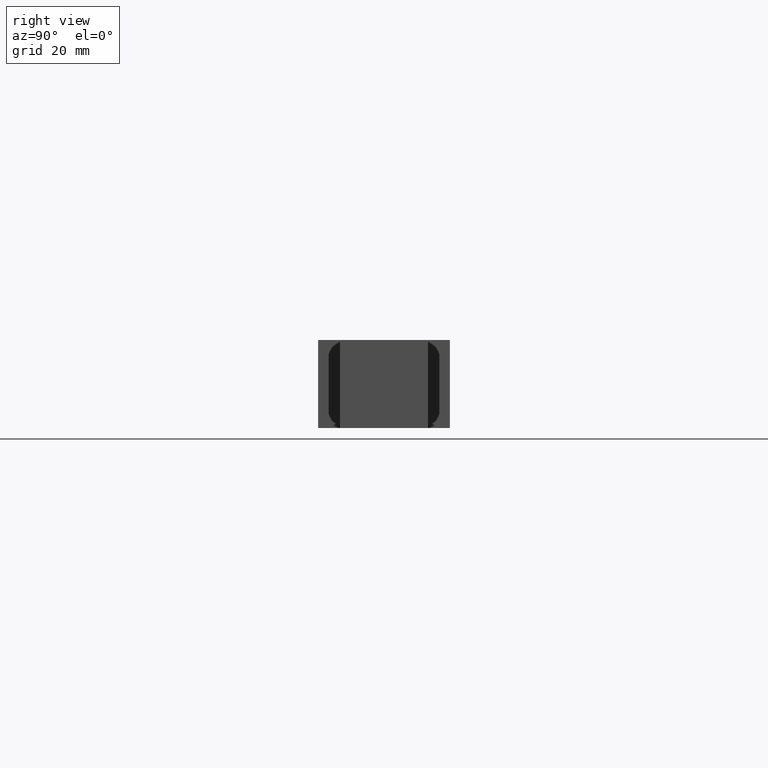
[diagram: clean part render]
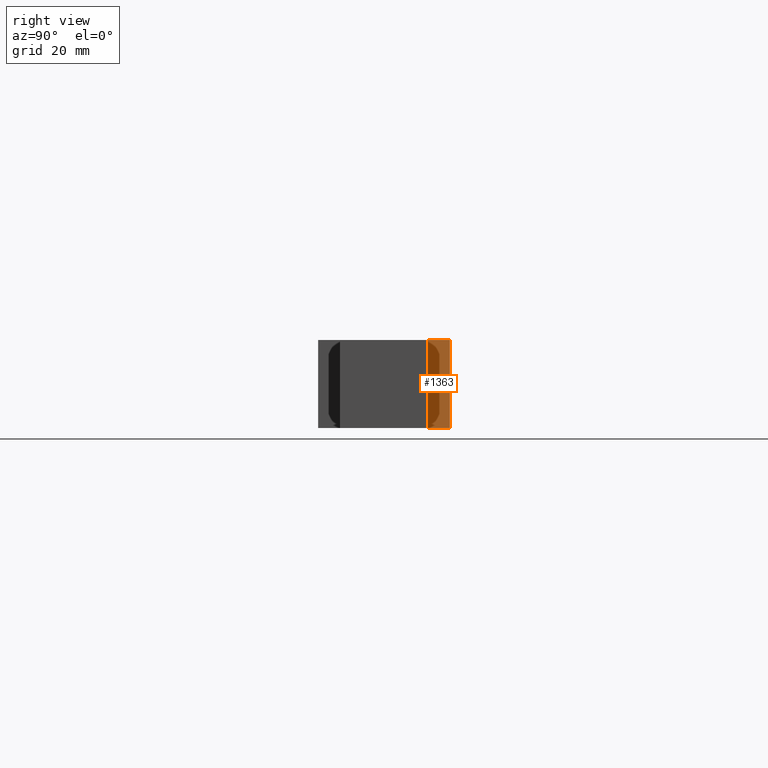
[diagram: same view with one face highlighted and labeled with its STEP entity id]
A machine part, right view. The second image highlights one B-rep face of the part: STEP entity #1363.
In plain terms, the highlighted planar face has unit normal (1, 0, -0).
Its self-contained STEP definition (entity closure, byte-faithful):
#19 = VERTEX_POINT ( 'NONE', #1342 ) ;
#131 = PLANE ( 'NONE',  #314 ) ;
#175 = EDGE_CURVE ( 'NONE', #2112, #465, #2324, .T. ) ;
#199 = ORIENTED_EDGE ( 'NONE', *, *, #967, .T. ) ;
#314 = AXIS2_PLACEMENT_3D ( 'NONE', #975, #2566, #2290 ) ;
#332 = DIRECTION ( 'NONE',  ( 0.0000000000000000000, 0.0000000000000000000, 1.000000000000000000 ) ) ;
#465 = VERTEX_POINT ( 'NONE', #1018 ) ;
#499 = LINE ( 'NONE', #2470, #1137 ) ;
#590 = VECTOR ( 'NONE', #819, 1000.000000000000000 ) ;
#745 = EDGE_CURVE ( 'NONE', #1110, #465, #2423, .T. ) ;
#819 = DIRECTION ( 'NONE',  ( -0.0000000000000000000, 1.000000000000000000, -0.0000000000000000000 ) ) ;
#967 = EDGE_CURVE ( 'NONE', #19, #2112, #1889, .T. ) ;
#975 = CARTESIAN_POINT ( 'NONE',  ( -110.0000000000000000, 11.99999999999998800, -16.00000000000000000 ) ) ;
#1018 = CARTESIAN_POINT ( 'NONE',  ( -110.0000000000000000, 11.99999999999998800, 0.0000000000000000000 ) ) ;
#1034 = DIRECTION ( 'NONE',  ( -0.0000000000000000000, 1.000000000000000000, -0.0000000000000000000 ) ) ;
#1110 = VERTEX_POINT ( 'NONE', #2296 ) ;
#1137 = VECTOR ( 'NONE', #332, 1000.000000000000000 ) ;
#1342 = CARTESIAN_POINT ( 'NONE',  ( -110.0000000000000000, 7.999999999999989300, -16.00000000000000000 ) ) ;
#1363 = ADVANCED_FACE ( 'NONE', ( #1574 ), #131, .T. ) ;
#1405 = VECTOR ( 'NONE', #1034, 1000.000000000000000 ) ;
#1546 = CARTESIAN_POINT ( 'NONE',  ( -110.0000000000000000, 11.99999999999998800, 0.0000000000000000000 ) ) ;
#1574 = FACE_OUTER_BOUND ( 'NONE', #3164, .T. ) ;
#1828 = CARTESIAN_POINT ( 'NONE',  ( -110.0000000000000000, 11.99999999999998800, -16.00000000000000000 ) ) ;
#1889 = LINE ( 'NONE', #1828, #1405 ) ;
#2046 = ORIENTED_EDGE ( 'NONE', *, *, #2752, .F. ) ;
#2112 = VERTEX_POINT ( 'NONE', #3436 ) ;
#2139 = ORIENTED_EDGE ( 'NONE', *, *, #745, .F. ) ;
#2290 = DIRECTION ( 'NONE',  ( -0.0000000000000000000, 0.0000000000000000000, -1.000000000000000000 ) ) ;
#2296 = CARTESIAN_POINT ( 'NONE',  ( -110.0000000000000000, 7.999999999999989300, 0.0000000000000000000 ) ) ;
#2324 = LINE ( 'NONE', #2490, #2782 ) ;
#2423 = LINE ( 'NONE', #1546, #590 ) ;
#2470 = CARTESIAN_POINT ( 'NONE',  ( -110.0000000000000000, 7.999999999999989300, -16.00000000000000000 ) ) ;
#2490 = CARTESIAN_POINT ( 'NONE',  ( -110.0000000000000000, 11.99999999999998800, -16.00000000000000000 ) ) ;
#2566 = DIRECTION ( 'NONE',  ( 1.000000000000000000, 0.0000000000000000000, -0.0000000000000000000 ) ) ;
#2752 = EDGE_CURVE ( 'NONE', #19, #1110, #499, .T. ) ;
#2782 = VECTOR ( 'NONE', #3018, 1000.000000000000000 ) ;
#3018 = DIRECTION ( 'NONE',  ( 0.0000000000000000000, 0.0000000000000000000, 1.000000000000000000 ) ) ;
#3164 = EDGE_LOOP ( 'NONE', ( #2139, #2046, #199, #3179 ) ) ;
#3179 = ORIENTED_EDGE ( 'NONE', *, *, #175, .T. ) ;
#3436 = CARTESIAN_POINT ( 'NONE',  ( -110.0000000000000000, 11.99999999999998800, -16.00000000000000000 ) ) ;